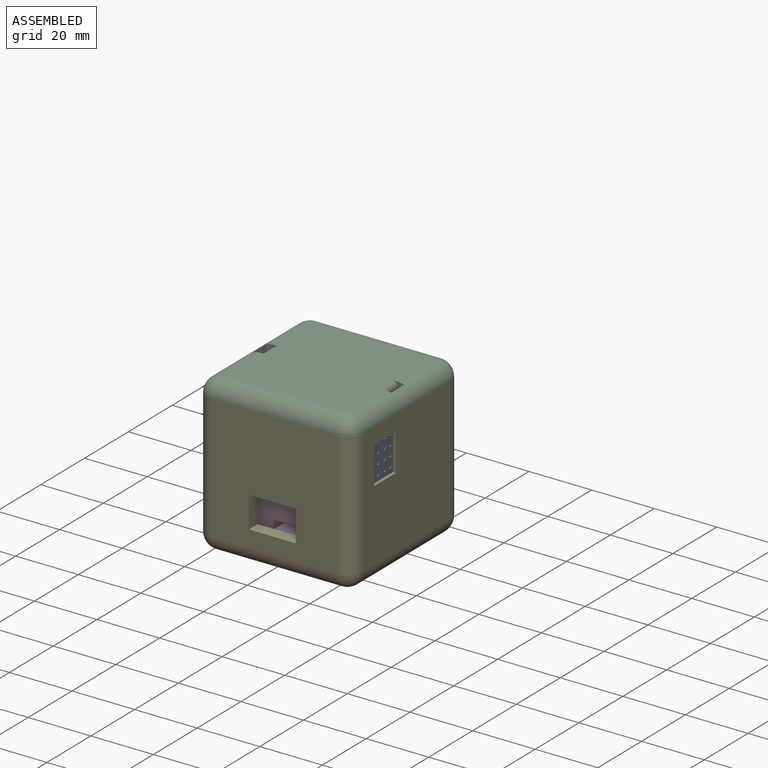
[diagram: assembled view]
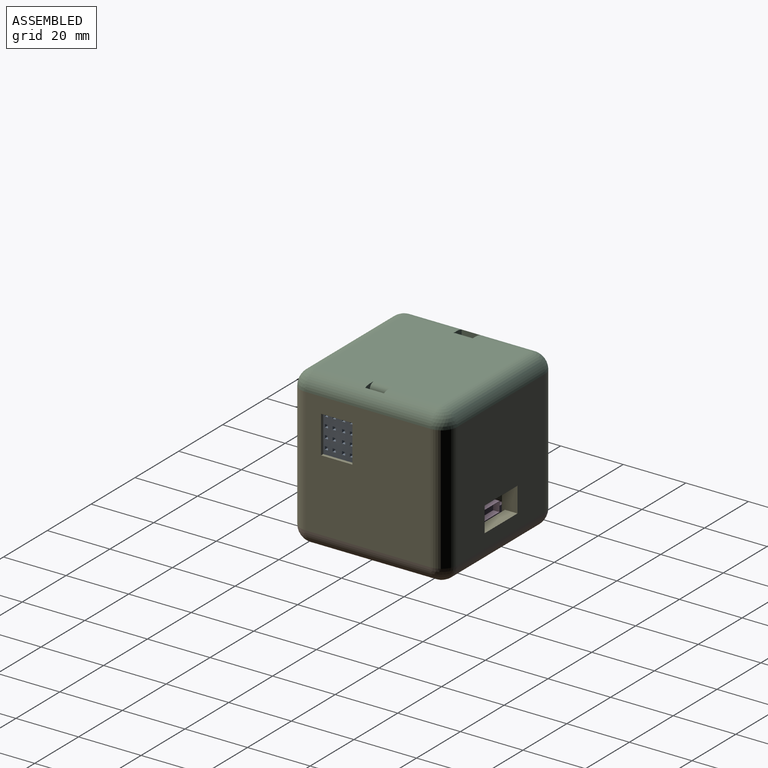
[diagram: assembled view, second angle]
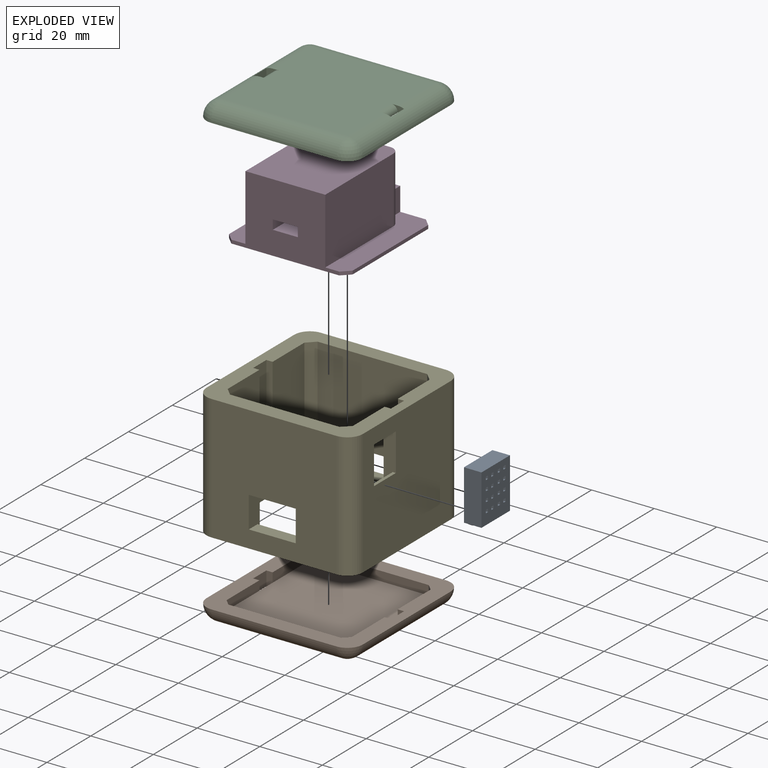
[diagram: exploded view]
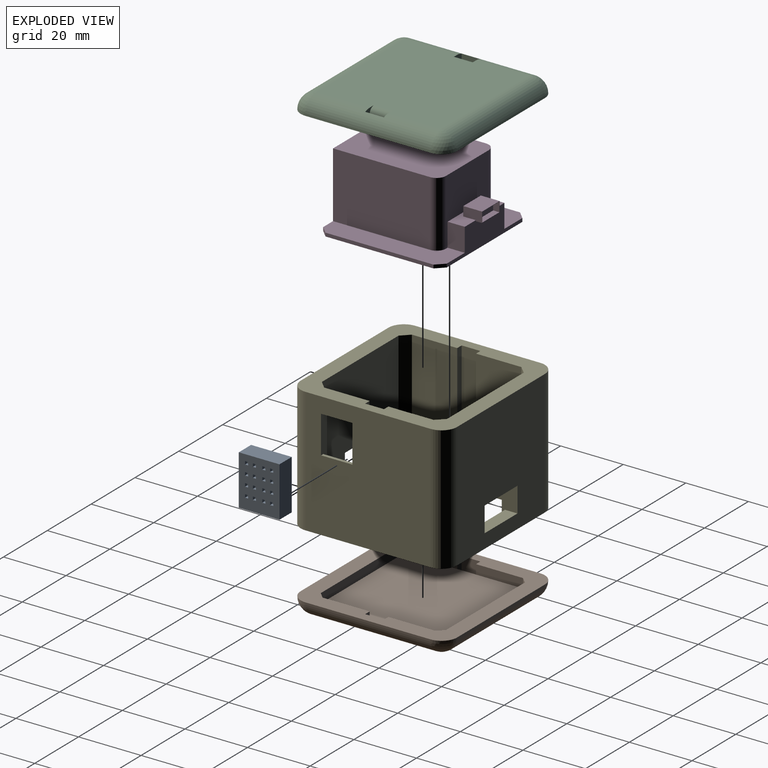
[diagram: exploded view, second angle]
ASSEMBLY  parts=5 mates=4
PART A: 98 faces, bbox 13x17.5x5.6 mm
  f0: plane 16x13mm, normal (0,0,1), area 192mm2, adj f1,f2,f3,f4,f18,f19,f20,f21
  f1: plane 16x5.6mm, normal (1,0,0), area 89.6mm2, adj f0,f2,f4,f5
  f2: plane 13x5.6mm, normal (0,1,0), area 72.8mm2, adj f0,f1,f3,f5
  f3: plane 16x5.6mm, normal (-1,0,0), area 89.6mm2, adj f0,f2,f4,f5
  f4: plane 13x5.6mm, normal (0,-1,0), area 71mm2, adj f0,f1,f3,f5,f7,f10,f13,f16
  f5: plane 16x13mm, normal (0,0,-1), area 208mm2, adj f1,f2,f3,f4
  f6: plane 0.75x0.75mm, normal (0,0,-1), area 0.4mm2, adj f8
  f7: torus R=1mm, axis (1,0,0), area 3.7mm2, adj f4,f8
  f8: cylinder r=0.38mm len=1mm, axis (0,0,-1), area 2.4mm2, adj f6,f7
  f9: plane 0.75x0.75mm, normal (0,0,-1), area 0.4mm2, adj f11
  f10: torus R=1mm, axis (1,0,0), area 3.7mm2, adj f4,f11
  f11: cylinder r=0.38mm len=1mm, axis (0,0,-1), area 2.4mm2, adj f9,f10
  f12: plane 0.75x0.75mm, normal (0,0,-1), area 0.4mm2, adj f14
  f13: torus R=1mm, axis (1,0,0), area 3.7mm2, adj f4,f14
  f14: cylinder r=0.38mm len=1mm, axis (0,0,-1), area 2.4mm2, adj f12,f13
  f15: plane 0.75x0.75mm, normal (0,0,-1), area 0.4mm2, adj f17
  f16: torus R=1mm, axis (1,0,0), area 3.7mm2, adj f4,f17
  f17: cylinder r=0.38mm len=1mm, axis (0,0,-1), area 2.4mm2, adj f15,f16
  f18: plane 1x1mm, normal (0,-1,0), area 1mm2, adj f0,f19,f21,f22
  f19: plane 1x1mm, normal (1,0,0), area 1mm2, adj f0,f18,f20,f22
  f20: plane 1x1mm, normal (0,1,0), area 1mm2, adj f0,f19,f21,f22
  f21: plane 1x1mm, normal (-1,0,0), area 1mm2, adj f0,f18,f20,f22
  f22: plane 1x1mm, normal (0,0,1), area 1mm2, adj f18,f19,f20,f21
  f23: plane 1x1mm, normal (-1,0,0), area 1mm2, adj f0,f24,f26,f27
  f24: plane 1x1mm, normal (0,-1,0), area 1mm2, adj f0,f23,f25,f27
  f25: plane 1x1mm, normal (1,0,0), area 1mm2, adj f0,f24,f26,f27
  f26: plane 1x1mm, normal (0,1,0), area 1mm2, adj f0,f23,f25,f27
  f27: plane 1x1mm, normal (0,0,1), area 1mm2, adj f23,f24,f25,f26
  f28: plane 1x1mm, normal (0,-1,0), area 1mm2, adj f0,f29,f31,f32
  f29: plane 1x1mm, normal (1,0,0), area 1mm2, adj f0,f28,f30,f32
  f30: plane 1x1mm, normal (0,1,0), area 1mm2, adj f0,f29,f31,f32
  f31: plane 1x1mm, normal (-1,0,0), area 1mm2, adj f0,f28,f30,f32
  f32: plane 1x1mm, normal (0,0,1), area 1mm2, adj f28,f29,f30,f31
  f33: plane 1x1mm, normal (0,1,0), area 1mm2, adj f0,f34,f36,f37
  f34: plane 1x1mm, normal (-1,0,0), area 1mm2, adj f0,f33,f35,f37
  f35: plane 1x1mm, normal (0,-1,0), area 1mm2, adj f0,f34,f36,f37
  f36: plane 1x1mm, normal (1,0,0), area 1mm2, adj f0,f33,f35,f37
  f37: plane 1x1mm, normal (0,0,1), area 1mm2, adj f33,f34,f35,f36
  f38: plane 1x1mm, normal (0,1,0), area 1mm2, adj f0,f39,f41,f42
  f39: plane 1x1mm, normal (-1,0,0), area 1mm2, adj f0,f38,f40,f42
  f40: plane 1x1mm, normal (0,-1,0), area 1mm2, adj f0,f39,f41,f42
  f41: plane 1x1mm, normal (1,0,0), area 1mm2, adj f0,f38,f40,f42
  f42: plane 1x1mm, normal (0,0,1), area 1mm2, adj f38,f39,f40,f41
  f43: plane 1x1mm, normal (0,1,0), area 1mm2, adj f0,f44,f46,f47
  f44: plane 1x1mm, normal (-1,0,0), area 1mm2, adj f0,f43,f45,f47
  f45: plane 1x1mm, normal (0,-1,0), area 1mm2, adj f0,f44,f46,f47
  f46: plane 1x1mm, normal (1,0,0), area 1mm2, adj f0,f43,f45,f47
  f47: plane 1x1mm, normal (0,0,1), area 1mm2, adj f43,f44,f45,f46
  f48: plane 1x1mm, normal (0,1,0), area 1mm2, adj f0,f49,f51,f52
  f49: plane 1x1mm, normal (-1,0,0), area 1mm2, adj f0,f48,f50,f52
  f50: plane 1x1mm, normal (0,-1,0), area 1mm2, adj f0,f49,f51,f52
  f51: plane 1x1mm, normal (1,0,0), area 1mm2, adj f0,f48,f50,f52
  f52: plane 1x1mm, normal (0,0,1), area 1mm2, adj f48,f49,f50,f51
  f53: plane 1x1mm, normal (0,-1,0), area 1mm2, adj f0,f54,f56,f57
  f54: plane 1x1mm, normal (1,0,0), area 1mm2, adj f0,f53,f55,f57
  f55: plane 1x1mm, normal (0,1,0), area 1mm2, adj f0,f54,f56,f57
  f56: plane 1x1mm, normal (-1,0,0), area 1mm2, adj f0,f53,f55,f57
  f57: plane 1x1mm, normal (0,0,1), area 1mm2, adj f53,f54,f55,f56
  f58: plane 1x1mm, normal (0,-1,0), area 1mm2, adj f0,f59,f61,f62
  f59: plane 1x1mm, normal (1,0,0), area 1mm2, adj f0,f58,f60,f62
  f60: plane 1x1mm, normal (0,1,0), area 1mm2, adj f0,f59,f61,f62
  f61: plane 1x1mm, normal (-1,0,0), area 1mm2, adj f0,f58,f60,f62
  f62: plane 1x1mm, normal (0,0,1), area 1mm2, adj f58,f59,f60,f61
  f63: plane 1x1mm, normal (0,-1,0), area 1mm2, adj f0,f64,f66,f67
  f64: plane 1x1mm, normal (1,0,0), area 1mm2, adj f0,f63,f65,f67
  f65: plane 1x1mm, normal (0,1,0), area 1mm2, adj f0,f64,f66,f67
  f66: plane 1x1mm, normal (-1,0,0), area 1mm2, adj f0,f63,f65,f67
  f67: plane 1x1mm, normal (0,0,1), area 1mm2, adj f63,f64,f65,f66
  f68: plane 1x1mm, normal (0,-1,0), area 1mm2, adj f0,f69,f71,f72
  f69: plane 1x1mm, normal (1,0,0), area 1mm2, adj f0,f68,f70,f72
  f70: plane 1x1mm, normal (0,1,0), area 1mm2, adj f0,f69,f71,f72
  f71: plane 1x1mm, normal (-1,0,0), area 1mm2, adj f0,f68,f70,f72
  f72: plane 1x1mm, normal (0,0,1), area 1mm2, adj f68,f69,f70,f71
  f73: plane 1x1mm, normal (0,-1,0), area 1mm2, adj f0,f74,f76,f77
  f74: plane 1x1mm, normal (1,0,0), area 1mm2, adj f0,f73,f75,f77
  f75: plane 1x1mm, normal (0,1,0), area 1mm2, adj f0,f74,f76,f77
  f76: plane 1x1mm, normal (-1,0,0), area 1mm2, adj f0,f73,f75,f77
  f77: plane 1x1mm, normal (0,0,1), area 1mm2, adj f73,f74,f75,f76
  f78: plane 1x1mm, normal (-1,0,0), area 1mm2, adj f0,f79,f81,f82
  f79: plane 1x1mm, normal (0,-1,0), area 1mm2, adj f0,f78,f80,f82
  f80: plane 1x1mm, normal (1,0,0), area 1mm2, adj f0,f79,f81,f82
  f81: plane 1x1mm, normal (0,1,0), area 1mm2, adj f0,f78,f80,f82
  f82: plane 1x1mm, normal (0,0,1), area 1mm2, adj f78,f79,f80,f81
  f83: plane 1x1mm, normal (0,-1,0), area 1mm2, adj f0,f84,f86,f87
  f84: plane 1x1mm, normal (1,0,0), area 1mm2, adj f0,f83,f85,f87
  f85: plane 1x1mm, normal (0,1,0), area 1mm2, adj f0,f84,f86,f87
  f86: plane 1x1mm, normal (-1,0,0), area 1mm2, adj f0,f83,f85,f87
  f87: plane 1x1mm, normal (0,0,1), area 1mm2, adj f83,f84,f85,f86
  f88: plane 1x1mm, normal (0,-1,0), area 1mm2, adj f0,f89,f91,f92
  f89: plane 1x1mm, normal (1,0,0), area 1mm2, adj f0,f88,f90,f92
  f90: plane 1x1mm, normal (0,1,0), area 1mm2, adj f0,f89,f91,f92
  f91: plane 1x1mm, normal (-1,0,0), area 1mm2, adj f0,f88,f90,f92
  f92: plane 1x1mm, normal (0,0,1), area 1mm2, adj f88,f89,f90,f91
  f93: plane 1x1mm, normal (0,-1,0), area 1mm2, adj f0,f94,f96,f97
  f94: plane 1x1mm, normal (1,0,0), area 1mm2, adj f0,f93,f95,f97
  f95: plane 1x1mm, normal (0,1,0), area 1mm2, adj f0,f94,f96,f97
  f96: plane 1x1mm, normal (-1,0,0), area 1mm2, adj f0,f93,f95,f97
  f97: plane 1x1mm, normal (0,0,1), area 1mm2, adj f93,f94,f95,f96
PART B: 29 faces, bbox 50x50x5 mm
  f0: plane 15x3mm, normal (-1,0,0), area 45mm2, adj f2,f9,f13,f24
  f1: plane 15x3mm, normal (1,0,0), area 45mm2, adj f2,f11,f13,f21
  f2: plane 50x50mm, normal (0,0,1), area 862.5mm2, adj f0,f1,f3,f5,f6,f7,f8,f9
  f3: cylinder r=5mm len=40mm, axis (0,-1,0), area 301.8mm2, adj f2,f4,f18,f20,f21,f22,f23
  f4: plane 40x40mm, normal (0,0,-1), area 1576mm2, adj f3,f15,f16,f19,f21,f23,f24,f25
  f5: plane 3x2mm, normal (0.71,0.71,0), area 8.5mm2, adj f2,f6,f12,f13
  f6: plane 36x3mm, normal (0,1,0), area 108mm2, adj f2,f5,f7,f13
  f7: plane 3x2mm, normal (-0.71,0.71,0), area 8.5mm2, adj f2,f6,f8,f13
  f8: plane 15x3mm, normal (-1,0,0), area 45mm2, adj f2,f7,f13,f25
  f9: plane 3x2mm, normal (-0.71,-0.71,0), area 8.5mm2, adj f0,f2,f10,f13
  f10: plane 36x3mm, normal (0,-1,0), area 108mm2, adj f2,f9,f11,f13
  f11: plane 3x2mm, normal (0.71,-0.71,0), area 8.5mm2, adj f1,f2,f10,f13
  f12: plane 15x3mm, normal (1,0,0), area 45mm2, adj f2,f5,f13,f23
  f13: plane 40x40mm, normal (0,0,1), area 1592mm2, adj f0,f1,f5,f6,f7,f8,f9,f10
  f14: sphere r=5mm, area 39.3mm2, adj f2,f15,f16
  f15: cylinder r=5mm len=40mm, axis (0,1,0), area 301.8mm2, adj f2,f4,f14,f17,f24,f25,f26
  f16: cylinder r=5mm len=40mm, axis (-1,0,0), area 314.2mm2, adj f2,f4,f14,f18
  f17: sphere r=5mm, area 39.3mm2, adj f2,f15,f19
  f18: sphere r=5mm, area 39.3mm2, adj f2,f3,f16
  f19: cylinder r=5mm len=40mm, axis (1,0,0), area 314.2mm2, adj f2,f4,f17,f20
  f20: sphere r=5mm, area 39.3mm2, adj f2,f3,f19
  f21: plane 5x4mm, normal (0,-1,0), area 10.6mm2, adj f1,f2,f3,f4,f22,f28
  f22: plane 6x4.58mm, normal (1,0,0), area 27.5mm2, adj f2,f3,f21,f23
  f23: plane 5x4mm, normal (0,1,0), area 10.6mm2, adj f2,f3,f4,f12,f22,f28
  f24: plane 5x4mm, normal (0,-1,0), area 10.6mm2, adj f0,f2,f4,f15,f26,f27
  f25: plane 5x4mm, normal (0,1,0), area 10.6mm2, adj f2,f4,f8,f15,f26,f27
  f26: plane 6x4.58mm, normal (-1,0,0), area 27.5mm2, adj f2,f15,f24,f25
  f27: cylinder r=2mm len=6mm, axis (0,-1,0), area 18.8mm2, adj f4,f13,f24,f25
  f28: cylinder r=2mm len=6mm, axis (0,-1,0), area 18.8mm2, adj f4,f13,f21,f23
PART C: 29 faces, bbox 50x50x5 mm
  f0: plane 15x3mm, normal (1,0,0), area 45mm2, adj f2,f9,f13,f24
  f1: plane 15x3mm, normal (-1,0,0), area 45mm2, adj f2,f11,f13,f21
  f2: plane 50x50mm, normal (0,0,-1), area 862.5mm2, adj f0,f1,f3,f5,f6,f7,f8,f9
  f3: cylinder r=5mm len=40mm, axis (0,-1,0), area 301.8mm2, adj f2,f4,f18,f20,f21,f22,f23
  f4: plane 40x40mm, normal (0,0,1), area 1576mm2, adj f3,f15,f16,f19,f21,f23,f24,f25
  f5: plane 3x2mm, normal (-0.71,0.71,0), area 8.5mm2, adj f2,f6,f12,f13
  f6: plane 36x3mm, normal (0,1,0), area 108mm2, adj f2,f5,f7,f13
  f7: plane 3x2mm, normal (0.71,0.71,0), area 8.5mm2, adj f2,f6,f8,f13
  f8: plane 15x3mm, normal (1,0,0), area 45mm2, adj f2,f7,f13,f25
  f9: plane 3x2mm, normal (0.71,-0.71,0), area 8.5mm2, adj f0,f2,f10,f13
  f10: plane 36x3mm, normal (0,-1,0), area 108mm2, adj f2,f9,f11,f13
  f11: plane 3x2mm, normal (-0.71,-0.71,0), area 8.5mm2, adj f1,f2,f10,f13
  f12: plane 15x3mm, normal (-1,0,0), area 45mm2, adj f2,f5,f13,f23
  f13: plane 40x40mm, normal (0,0,-1), area 1592mm2, adj f0,f1,f5,f6,f7,f8,f9,f10
  f14: sphere r=5mm, area 39.3mm2, adj f2,f15,f16
  f15: cylinder r=5mm len=40mm, axis (0,1,0), area 301.8mm2, adj f2,f4,f14,f17,f24,f25,f26
  f16: cylinder r=5mm len=40mm, axis (1,0,0), area 314.2mm2, adj f2,f4,f14,f18
  f17: sphere r=5mm, area 39.3mm2, adj f2,f15,f19
  f18: sphere r=5mm, area 39.3mm2, adj f2,f3,f16
  f19: cylinder r=5mm len=40mm, axis (-1,0,0), area 314.2mm2, adj f2,f4,f17,f20
  f20: sphere r=5mm, area 39.3mm2, adj f2,f3,f19
  f21: plane 5x4mm, normal (0,-1,0), area 10.6mm2, adj f1,f2,f3,f4,f22,f28
  f22: plane 6x4.58mm, normal (-1,0,0), area 27.5mm2, adj f2,f3,f21,f23
  f23: plane 5x4mm, normal (0,1,0), area 10.6mm2, adj f2,f3,f4,f12,f22,f28
  f24: plane 5x4mm, normal (0,-1,0), area 10.6mm2, adj f0,f2,f4,f15,f26,f27
  f25: plane 5x4mm, normal (0,1,0), area 10.6mm2, adj f2,f4,f8,f15,f26,f27
  f26: plane 6x4.58mm, normal (1,0,0), area 27.5mm2, adj f2,f15,f24,f25
  f27: cylinder r=2mm len=6mm, axis (0,-1,0), area 18.8mm2, adj f4,f13,f24,f25
  f28: cylinder r=2mm len=6mm, axis (0,-1,0), area 18.8mm2, adj f4,f13,f21,f23
PART D: 36 faces, bbox 39.5x41.5x22.1 mm
  f0: plane 34.5x8.6mm, normal (0,1,0), area 171.3mm2, adj f1,f3,f8,f9,f11,f12,f18,f19
  f1: plane 18.1x5.5mm, normal (0,0,1), area 67.5mm2, adj f0,f4,f18,f19,f25,f26,f27
  f2: plane 34.5x22.1mm, normal (0,-1,0), area 549.5mm2, adj f3,f5,f6,f11,f12,f13,f16,f17
  f3: plane 39.5x10.7mm, normal (0,0,1), area 292.5mm2, adj f0,f2,f4,f6,f7,f8,f13,f14
  f4: plane 21x19.5mm, normal (0,1,0), area 273.7mm2, adj f1,f3,f11,f14,f15,f17,f18,f19
  f5: plane 2.5x2.5mm, normal (-0.71,-0.71,0), area 3.9mm2, adj f2,f10,f11,f12
  f6: plane 2.5x2.5mm, normal (0.71,-0.71,0), area 3.9mm2, adj f2,f3,f7,f12
  f7: plane 34.5x1.1mm, normal (1,0,0), area 38mm2, adj f3,f6,f8,f12
  f8: plane 2.5x2.5mm, normal (0.71,0.71,0), area 3.9mm2, adj f0,f3,f7,f12
  f9: plane 2.5x2.5mm, normal (-0.71,0.71,0), area 3.9mm2, adj f0,f10,f11,f12
  f10: plane 34.5x1.1mm, normal (-1,0,0), area 38mm2, adj f5,f9,f11,f12
  f11: plane 39.5x10.7mm, normal (0,0,1), area 292.5mm2, adj f0,f2,f4,f5,f9,f10,f15,f16
  f12: plane 39.5x39.5mm, normal (0,0,-1), area 1547.8mm2, adj f0,f2,f5,f6,f7,f8,f9,f10
  f13: plane 31x21mm, normal (1,0,0), area 651mm2, adj f2,f3,f14,f17
  f14: cylinder r=3mm len=21mm, axis (0,0,-1), area 99mm2, adj f3,f4,f13,f17
  f15: cylinder r=3mm len=21mm, axis (0,0,-1), area 99mm2, adj f4,f11,f16,f17
  f16: plane 31x21mm, normal (-1,0,0), area 651mm2, adj f2,f11,f15,f17
  f17: plane 34x25.5mm, normal (0,0,1), area 863.1mm2, adj f2,f4,f13,f14,f15,f16
  f18: plane 7.5x5.5mm, normal (1,0,0), area 41.2mm2, adj f0,f1,f3,f4
  f19: plane 7.5x5.5mm, normal (-1,0,0), area 41.2mm2, adj f0,f1,f4,f11
  f20: plane 8x7mm, normal (0,0,1), area 56mm2, adj f2,f21,f23,f24
  f21: plane 7x3mm, normal (-1,0,0), area 21mm2, adj f2,f20,f22,f24
  f22: plane 8x7mm, normal (0,0,-1), area 56mm2, adj f2,f21,f23,f24
  f23: plane 7x3mm, normal (1,0,0), area 21mm2, adj f2,f20,f22,f24
  f24: plane 8x3mm, normal (0,-1,0), area 24mm2, adj f20,f21,f22,f23
  f25: plane 8x3mm, normal (0,-1,0), area 24mm2, adj f1,f26,f27,f28
  f26: plane 6x3.3mm, normal (1,0,0), area 18.6mm2, adj f0,f1,f25,f28,f32,f34
  f27: plane 6x3.3mm, normal (-1,0,0), area 18.6mm2, adj f0,f1,f25,f28,f32,f34
  f28: plane 8x6mm, normal (0,0,1), area 48mm2, adj f25,f26,f27,f34
  f29: plane 7.8x2mm, normal (0,0,-1), area 15.6mm2, adj f30,f33,f34,f35
  f30: plane 3.1x2mm, normal (1,0,0), area 6.2mm2, adj f29,f31,f34,f35
  f31: plane 7.8x2mm, normal (0,0,1), area 15.6mm2, adj f30,f33,f34,f35
  f32: plane 8x2mm, normal (0,0,-1), area 16mm2, adj f0,f26,f27,f34
  f33: plane 3.1x2mm, normal (-1,0,0), area 6.2mm2, adj f29,f31,f34,f35
  f34: plane 8x3.3mm, normal (0,1,0), area 2.2mm2, adj f26,f27,f28,f29,f30,f31,f32,f33
  f35: plane 7.8x3.1mm, normal (0,1,0), area 24.2mm2, adj f29,f30,f31,f33
PART E: 45 faces, bbox 50x50x40 mm
  f0: plane 40x35mm, normal (0,1,0), area 1167.5mm2, adj f1,f12,f29,f30,f31,f32,f33
  f1: plane 50x50mm, normal (0,0,-1), area 837mm2, adj f0,f3,f8,f9,f10,f11,f12,f13
  f2: plane 15x4mm, normal (0,0,1), area 60mm2, adj f11,f31,f32,f44
  f3: plane 40x14.5mm, normal (-1,0,0), area 344.2mm2, adj f1,f23,f29,f30,f38,f39,f40,f41
  f4: plane 10x1mm, normal (0,0,-1), area 10mm2, adj f5,f7,f8,f42
  f5: plane 12x1mm, normal (0,1,0), area 12mm2, adj f4,f6,f8,f42
  f6: plane 10x1mm, normal (0,0,1), area 10mm2, adj f5,f7,f8,f42
  f7: plane 12x1mm, normal (0,-1,0), area 12mm2, adj f4,f6,f8,f42
  f8: plane 40x40mm, normal (1,0,0), area 1480mm2, adj f1,f4,f5,f6,f7,f24,f28,f30
  f9: plane 40x35mm, normal (0,-1,0), area 1212.5mm2, adj f1,f18,f19,f30,f35,f36,f37
  f10: plane 40x40mm, normal (0,1,0), area 1480mm2, adj f1,f24,f25,f30,f34,f35,f36,f37
  f11: plane 40x40mm, normal (0,-1,0), area 1450mm2, adj f1,f2,f27,f28,f30,f31,f32,f33
  f12: plane 40x2.5mm, normal (0.71,0.71,0), area 141.4mm2, adj f0,f1,f13,f30
  f13: plane 40x14.5mm, normal (1,0,0), area 580mm2, adj f1,f12,f14,f30
  f14: plane 40x2mm, normal (0,1,0), area 80mm2, adj f1,f13,f15,f30
  f15: plane 40x6mm, normal (1,0,0), area 240mm2, adj f1,f14,f16,f30
  f16: plane 40x2mm, normal (0,-1,0), area 80mm2, adj f1,f15,f17,f30
  f17: plane 40x14.5mm, normal (1,0,0), area 580mm2, adj f1,f16,f18,f30
  f18: plane 40x2.5mm, normal (0.71,-0.71,0), area 141.4mm2, adj f1,f9,f17,f30
  f19: plane 40x2.5mm, normal (-0.71,-0.71,0), area 141.4mm2, adj f1,f9,f20,f30
  f20: plane 40x14.5mm, normal (-1,0,0), area 580mm2, adj f1,f19,f21,f30
  f21: plane 40x2mm, normal (0,-1,0), area 80mm2, adj f1,f20,f22,f30
  f22: plane 40x6mm, normal (-1,0,0), area 240mm2, adj f1,f21,f23,f30
  f23: plane 40x2mm, normal (0,1,0), area 80mm2, adj f1,f3,f22,f30
  f24: cylinder r=5mm len=40mm, axis (0,0,-1), area 314.2mm2, adj f1,f8,f10,f30
  f25: cylinder r=5mm len=40mm, axis (0,0,-1), area 314.2mm2, adj f1,f10,f26,f30
  f26: plane 40x40mm, normal (-1,0,0), area 1600mm2, adj f1,f25,f27,f30
  f27: cylinder r=5mm len=40mm, axis (0,0,-1), area 314.2mm2, adj f1,f11,f26,f30
  f28: cylinder r=5mm len=40mm, axis (0,0,-1), area 314.2mm2, adj f1,f8,f11,f30
  f29: plane 40x2.5mm, normal (-0.71,0.71,0), area 141.4mm2, adj f0,f1,f3,f30
  f30: plane 50x50mm, normal (0,0,1), area 867mm2, adj f0,f3,f8,f9,f10,f11,f12,f13
  f31: plane 15.5x5mm, normal (1,0,0), area 55.5mm2, adj f0,f1,f2,f11,f33,f44
  f32: plane 15.5x5mm, normal (-1,0,0), area 55.5mm2, adj f0,f1,f2,f11,f33,f44
  f33: plane 15x5mm, normal (0,0,-1), area 75mm2, adj f0,f11,f31,f32
  f34: plane 15x4mm, normal (0,0,1), area 60mm2, adj f10,f35,f37,f43
  f35: plane 12.5x5mm, normal (1,0,0), area 44.5mm2, adj f1,f9,f10,f34,f36,f43
  f36: plane 15x5mm, normal (0,0,-1), area 75mm2, adj f9,f10,f35,f37
  f37: plane 12.5x5mm, normal (-1,0,0), area 44.5mm2, adj f1,f9,f10,f34,f36,f43
  f38: plane 13.1x4mm, normal (0,0,-1), area 52.4mm2, adj f3,f39,f41,f42
  f39: plane 18x4mm, normal (0,-1,0), area 72mm2, adj f3,f38,f40,f42
  f40: plane 13.1x4mm, normal (0,0,1), area 52.4mm2, adj f3,f39,f41,f42
  f41: plane 18x4mm, normal (0,1,0), area 72mm2, adj f3,f38,f40,f42
  f42: plane 18x13.1mm, normal (-1,0,0), area 115.8mm2, adj f4,f5,f6,f7,f38,f39,f40,f41
  f43: plane 15x4.5mm, normal (0,-1,0), area 67.5mm2, adj f1,f34,f35,f37
  f44: plane 15x5.5mm, normal (0,1,0), area 82.5mm2, adj f1,f2,f31,f32
PLACE A rot(axis=(0.58,0.58,0.58),120deg) t=(18.4,1.5,45)mm
PLACE B t=(-25,-25,-2)mm
PLACE C t=(-25,-25,-2)mm
PLACE D t=(-19.75,-19.75,0)mm
PLACE E t=(-25,-25,-2)mm
MATE fastened E.f42 <-> A.f0  axis (-1,0,0) through (24,-10,40)mm
MATE fastened C.f2 <-> E.f28  axis (0,0,-1) through (20,-20,43)mm
MATE fastened E.f28 <-> B.f2  axis (0,0,-1) through (20,-20,3)mm
MATE fastened B.f13 <-> D.f12  axis (0,0,1) through (0,0,0)mm
